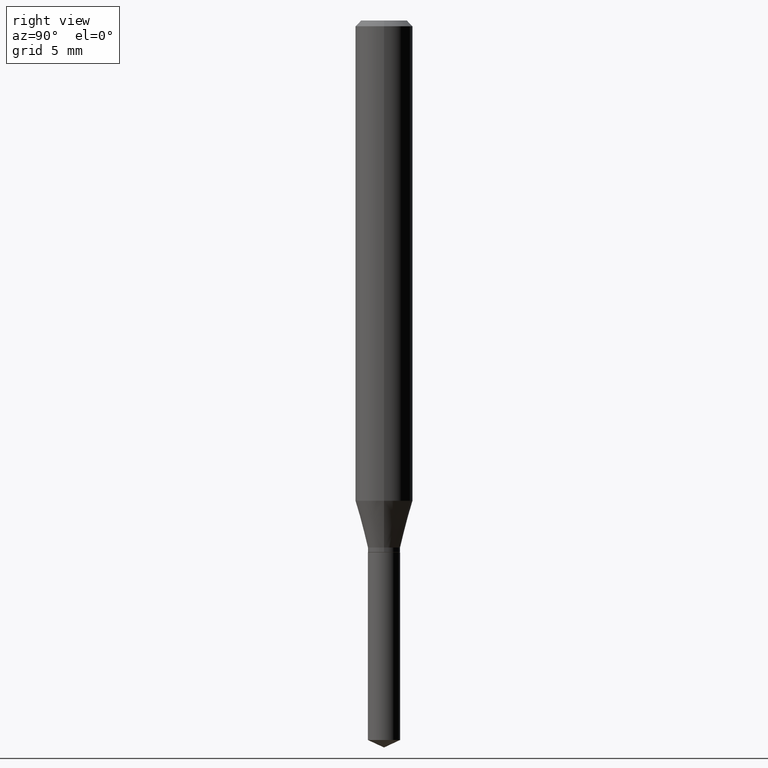
[diagram: clean part render]
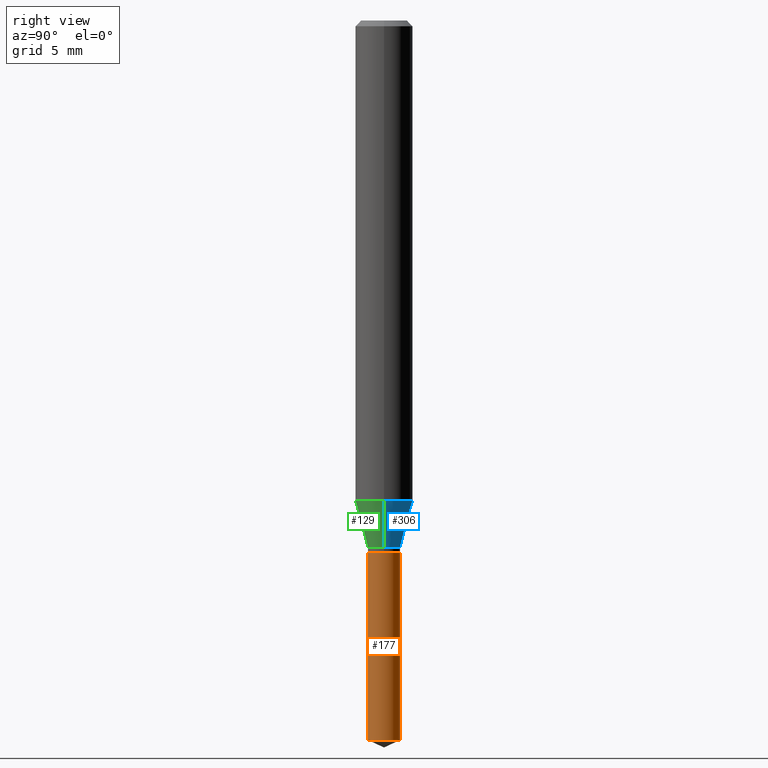
[diagram: same view with three faces highlighted in distinct colors, each labeled with its STEP entity id]
A machine part, right view with three faces highlighted in distinct colors.
Their STEP definitions:

[orange] entity #177 — the highlighted cylindrical surface (edge-blend (fillet) strip) has radius 0.8446 mm, axis along (-0, 0, 1).
#1 = VERTEX_POINT ( 'NONE', #280 ) ;
#18 = CARTESIAN_POINT ( 'NONE',  ( 2.362554596402600471E-16, 0.03324999999999617845, -1.094500000000000028 ) ) ;
#23 = VERTEX_POINT ( 'NONE', #282 ) ;
#26 = ORIENTED_EDGE ( 'NONE', *, *, #152, .T. ) ;
#41 = DIRECTION ( 'NONE',  ( -6.982962677686265922E-15, -1.000000000000000000, 4.108042095735734288E-15 ) ) ;
#42 = AXIS2_PLACEMENT_3D ( 'NONE', #293, #435, #399 ) ;
#50 = AXIS2_PLACEMENT_3D ( 'NONE', #330, #369, #367 ) ;
#73 = ORIENTED_EDGE ( 'NONE', *, *, #245, .T. ) ;
#77 = EDGE_CURVE ( 'NONE', #1, #469, #132, .T. ) ;
#79 = CARTESIAN_POINT ( 'NONE',  ( -2.321835090330415843E-16, -0.03325000000000382511, -1.094499999999999806 ) ) ;
#113 = LINE ( 'NONE', #79, #220 ) ;
#119 = EDGE_LOOP ( 'NONE', ( #26, #73, #482, #309 ) ) ;
#120 = DIRECTION ( 'NONE',  ( -2.445470214571802396E-29, 3.491479321953280158E-15, 1.000000000000000000 ) ) ;
#125 = DIRECTION ( 'NONE',  ( -2.445470214571802396E-29, 3.491479321953280158E-15, 1.000000000000000000 ) ) ;
#132 = CIRCLE ( 'NONE', #219, 0.03325000000000000178 ) ;
#152 = EDGE_CURVE ( 'NONE', #374, #23, #335, .T. ) ;
#163 = DIRECTION ( 'NONE',  ( -2.445470214571802116E-29, 3.491479321953280158E-15, 1.000000000000000000 ) ) ;
#177 = ADVANCED_FACE ( 'NONE', ( #431 ), #253, .T. ) ;
#219 = AXIS2_PLACEMENT_3D ( 'NONE', #316, #163, #41 ) ;
#220 = VECTOR ( 'NONE', #120, 39.37007874015748143 ) ;
#240 = CARTESIAN_POINT ( 'NONE',  ( 2.362554596402695134E-16, 0.03324999999999617845, -1.094500000000000028 ) ) ;
#245 = EDGE_CURVE ( 'NONE', #23, #469, #394, .T. ) ;
#253 = CYLINDRICAL_SURFACE ( 'NONE', #42, 0.03325000000000000178 ) ;
#259 = VECTOR ( 'NONE', #125, 39.37007874015748143 ) ;
#280 = CARTESIAN_POINT ( 'NONE',  ( -2.321835090330415843E-16, -0.03325000000000382511, -1.094499999999999806 ) ) ;
#282 = CARTESIAN_POINT ( 'NONE',  ( 2.362554596402695134E-16, 0.03324999999999482536, -1.480595270366346305 ) ) ;
#293 = CARTESIAN_POINT ( 'NONE',  ( 2.676565608369631794E-29, -3.821426325363822773E-15, -1.094499999999999806 ) ) ;
#309 = ORIENTED_EDGE ( 'NONE', *, *, #457, .F. ) ;
#316 = CARTESIAN_POINT ( 'NONE',  ( 2.676565608369631794E-29, -3.821426325363822773E-15, -1.094499999999999806 ) ) ;
#320 = CARTESIAN_POINT ( 'NONE',  ( -2.321835090330320687E-16, -0.03325000000000517125, -1.480595270366346305 ) ) ;
#330 = CARTESIAN_POINT ( 'NONE',  ( 3.620750092037578923E-29, -5.169469978151881884E-15, -1.480595270366346305 ) ) ;
#335 = CIRCLE ( 'NONE', #50, 0.03325000000000000178 ) ;
#367 = DIRECTION ( 'NONE',  ( -6.982962677686265922E-15, -1.000000000000000000, 0.000000000000000000 ) ) ;
#369 = DIRECTION ( 'NONE',  ( -2.445470214571802116E-29, 3.491479321953280158E-15, 1.000000000000000000 ) ) ;
#374 = VERTEX_POINT ( 'NONE', #320 ) ;
#394 = LINE ( 'NONE', #18, #259 ) ;
#399 = DIRECTION ( 'NONE',  ( -6.982962677686265922E-15, -1.000000000000000000, 4.108042095735734288E-15 ) ) ;
#431 = FACE_OUTER_BOUND ( 'NONE', #119, .T. ) ;
#435 = DIRECTION ( 'NONE',  ( -2.445470214571802116E-29, 3.491479321953280158E-15, 1.000000000000000000 ) ) ;
#457 = EDGE_CURVE ( 'NONE', #374, #1, #113, .T. ) ;
#469 = VERTEX_POINT ( 'NONE', #240 ) ;
#482 = ORIENTED_EDGE ( 'NONE', *, *, #77, .F. ) ;

[blue] entity #306 — the highlighted conical surface has half-angle 15 deg.
#34 = FACE_OUTER_BOUND ( 'NONE', #307, .T. ) ;
#40 = DIRECTION ( 'NONE',  ( -0.2588190451025211281, 5.211531920934547886E-15, 0.9659258262890679791 ) ) ;
#90 = AXIS2_PLACEMENT_3D ( 'NONE', #160, #379, #386 ) ;
#101 = CARTESIAN_POINT ( 'NONE',  ( -0.05905000000000011628, -3.030752074152826708E-15, -0.9882130891647225024 ) ) ;
#102 = EDGE_CURVE ( 'NONE', #299, #258, #127, .T. ) ;
#103 = AXIS2_PLACEMENT_3D ( 'NONE', #345, #486, #261 ) ;
#127 = LINE ( 'NONE', #205, #157 ) ;
#137 = ORIENTED_EDGE ( 'NONE', *, *, #372, .F. ) ;
#141 = CARTESIAN_POINT ( 'NONE',  ( -0.03325000000000000178, -3.566840588694662478E-15, -1.084499999999999797 ) ) ;
#144 = ORIENTED_EDGE ( 'NONE', *, *, #310, .T. ) ;
#148 = VECTOR ( 'NONE', #40, 39.37007874015748854 ) ;
#153 = CARTESIAN_POINT ( 'NONE',  ( -0.03325000000000000178, -3.550256052335157800E-15, -1.084499999999999797 ) ) ;
#157 = VECTOR ( 'NONE', #289, 39.37007874015748854 ) ;
#160 = CARTESIAN_POINT ( 'NONE',  ( 2.416644283416180076E-29, -3.450327559619166201E-15, -0.9882130891647225024 ) ) ;
#175 = CIRCLE ( 'NONE', #103, 0.03325000000000000178 ) ;
#180 = DIRECTION ( 'NONE',  ( -2.445468806185136597E-29, 3.491481338843145583E-15, 1.000000000000000000 ) ) ;
#184 = CARTESIAN_POINT ( 'NONE',  ( 0.03325000000000000178, -4.018695021008458987E-15, -1.084499999999999797 ) ) ;
#205 = CARTESIAN_POINT ( 'NONE',  ( 0.03325000000000000178, -4.018695021008458987E-15, -1.084499999999999797 ) ) ;
#209 = CONICAL_SURFACE ( 'NONE', #465, 0.03325000000000000178, 0.2617993877991498519 ) ;
#221 = DIRECTION ( 'NONE',  ( 1.000000000000000000, -6.982962677686267499E-15, 0.000000000000000000 ) ) ;
#250 = VERTEX_POINT ( 'NONE', #141 ) ;
#258 = VERTEX_POINT ( 'NONE', #337 ) ;
#261 = DIRECTION ( 'NONE',  ( 1.000000000000000000, -6.982962677686267499E-15, 0.000000000000000000 ) ) ;
#275 = VERTEX_POINT ( 'NONE', #101 ) ;
#278 = CIRCLE ( 'NONE', #90, 0.05905000000000011628 ) ;
#289 = DIRECTION ( 'NONE',  ( 0.2588190451025211281, 1.565188264969622954E-15, 0.9659258262890679791 ) ) ;
#299 = VERTEX_POINT ( 'NONE', #184 ) ;
#306 = ADVANCED_FACE ( 'NONE', ( #34 ), #209, .T. ) ;
#307 = EDGE_LOOP ( 'NONE', ( #144, #413, #137, #333 ) ) ;
#310 = EDGE_CURVE ( 'NONE', #299, #250, #175, .T. ) ;
#333 = ORIENTED_EDGE ( 'NONE', *, *, #102, .F. ) ;
#337 = CARTESIAN_POINT ( 'NONE',  ( 0.05905000000000011628, -3.862671505736541121E-15, -0.9882130891647225024 ) ) ;
#345 = CARTESIAN_POINT ( 'NONE',  ( 2.652110920307780249E-29, -3.786511511975391124E-15, -1.084499999999999797 ) ) ;
#372 = EDGE_CURVE ( 'NONE', #258, #275, #278, .T. ) ;
#379 = DIRECTION ( 'NONE',  ( -2.445468806185136597E-29, 3.491481338843145583E-15, 1.000000000000000000 ) ) ;
#386 = DIRECTION ( 'NONE',  ( 1.000000000000000000, -6.982962677686266711E-15, 0.000000000000000000 ) ) ;
#411 = CARTESIAN_POINT ( 'NONE',  ( 2.652110920307780249E-29, -3.786511511975391124E-15, -1.084499999999999797 ) ) ;
#413 = ORIENTED_EDGE ( 'NONE', *, *, #484, .T. ) ;
#464 = LINE ( 'NONE', #153, #148 ) ;
#465 = AXIS2_PLACEMENT_3D ( 'NONE', #411, #180, #221 ) ;
#484 = EDGE_CURVE ( 'NONE', #250, #275, #464, .T. ) ;
#486 = DIRECTION ( 'NONE',  ( -2.445468806185136597E-29, 3.491481338843145583E-15, 1.000000000000000000 ) ) ;

[green] entity #129 — the highlighted conical surface has half-angle 15 deg.
#31 = DIRECTION ( 'NONE',  ( 1.000000000000000000, -6.982962677686266711E-15, 0.000000000000000000 ) ) ;
#40 = DIRECTION ( 'NONE',  ( -0.2588190451025211281, 5.211531920934547886E-15, 0.9659258262890679791 ) ) ;
#51 = CONICAL_SURFACE ( 'NONE', #406, 0.03325000000000000178, 0.2617993877991498519 ) ;
#59 = ORIENTED_EDGE ( 'NONE', *, *, #288, .T. ) ;
#101 = CARTESIAN_POINT ( 'NONE',  ( -0.05905000000000011628, -3.030752074152826708E-15, -0.9882130891647225024 ) ) ;
#102 = EDGE_CURVE ( 'NONE', #299, #258, #127, .T. ) ;
#127 = LINE ( 'NONE', #205, #157 ) ;
#129 = ADVANCED_FACE ( 'NONE', ( #401 ), #51, .T. ) ;
#135 = DIRECTION ( 'NONE',  ( 1.000000000000000000, -6.982962677686267499E-15, 0.000000000000000000 ) ) ;
#141 = CARTESIAN_POINT ( 'NONE',  ( -0.03325000000000000178, -3.566840588694662478E-15, -1.084499999999999797 ) ) ;
#148 = VECTOR ( 'NONE', #40, 39.37007874015748854 ) ;
#153 = CARTESIAN_POINT ( 'NONE',  ( -0.03325000000000000178, -3.550256052335157800E-15, -1.084499999999999797 ) ) ;
#157 = VECTOR ( 'NONE', #289, 39.37007874015748854 ) ;
#159 = CIRCLE ( 'NONE', #414, 0.03325000000000000178 ) ;
#182 = EDGE_LOOP ( 'NONE', ( #314, #59, #265, #211 ) ) ;
#184 = CARTESIAN_POINT ( 'NONE',  ( 0.03325000000000000178, -4.018695021008458987E-15, -1.084499999999999797 ) ) ;
#186 = DIRECTION ( 'NONE',  ( -2.445468806185136597E-29, 3.491481338843145583E-15, 1.000000000000000000 ) ) ;
#205 = CARTESIAN_POINT ( 'NONE',  ( 0.03325000000000000178, -4.018695021008458987E-15, -1.084499999999999797 ) ) ;
#211 = ORIENTED_EDGE ( 'NONE', *, *, #266, .F. ) ;
#224 = CARTESIAN_POINT ( 'NONE',  ( 2.652110920307780249E-29, -3.786511511975391124E-15, -1.084499999999999797 ) ) ;
#235 = AXIS2_PLACEMENT_3D ( 'NONE', #302, #186, #31 ) ;
#250 = VERTEX_POINT ( 'NONE', #141 ) ;
#258 = VERTEX_POINT ( 'NONE', #337 ) ;
#265 = ORIENTED_EDGE ( 'NONE', *, *, #102, .T. ) ;
#266 = EDGE_CURVE ( 'NONE', #275, #258, #378, .T. ) ;
#275 = VERTEX_POINT ( 'NONE', #101 ) ;
#288 = EDGE_CURVE ( 'NONE', #250, #299, #159, .T. ) ;
#289 = DIRECTION ( 'NONE',  ( 0.2588190451025211281, 1.565188264969622954E-15, 0.9659258262890679791 ) ) ;
#299 = VERTEX_POINT ( 'NONE', #184 ) ;
#302 = CARTESIAN_POINT ( 'NONE',  ( 2.416644283416180076E-29, -3.450327559619166201E-15, -0.9882130891647225024 ) ) ;
#314 = ORIENTED_EDGE ( 'NONE', *, *, #484, .F. ) ;
#337 = CARTESIAN_POINT ( 'NONE',  ( 0.05905000000000011628, -3.862671505736541121E-15, -0.9882130891647225024 ) ) ;
#362 = DIRECTION ( 'NONE',  ( -2.445468806185136597E-29, 3.491481338843145583E-15, 1.000000000000000000 ) ) ;
#378 = CIRCLE ( 'NONE', #235, 0.05905000000000011628 ) ;
#401 = FACE_OUTER_BOUND ( 'NONE', #182, .T. ) ;
#404 = DIRECTION ( 'NONE',  ( 1.000000000000000000, -6.982962677686267499E-15, 0.000000000000000000 ) ) ;
#406 = AXIS2_PLACEMENT_3D ( 'NONE', #481, #362, #135 ) ;
#414 = AXIS2_PLACEMENT_3D ( 'NONE', #224, #446, #404 ) ;
#446 = DIRECTION ( 'NONE',  ( -2.445468806185136597E-29, 3.491481338843145583E-15, 1.000000000000000000 ) ) ;
#464 = LINE ( 'NONE', #153, #148 ) ;
#481 = CARTESIAN_POINT ( 'NONE',  ( 2.652110920307780249E-29, -3.786511511975391124E-15, -1.084499999999999797 ) ) ;
#484 = EDGE_CURVE ( 'NONE', #250, #275, #464, .T. ) ;